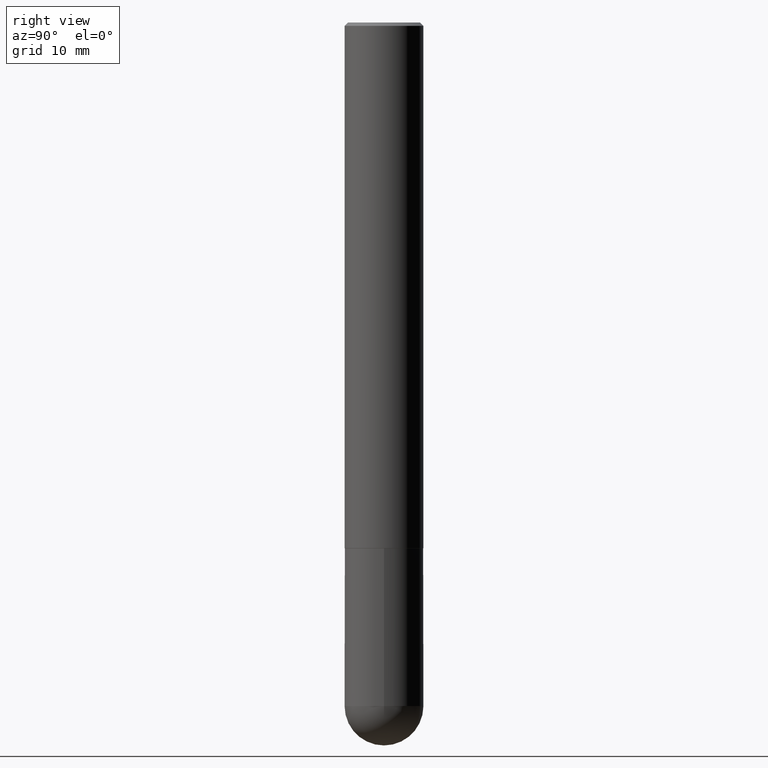
[diagram: clean part render]
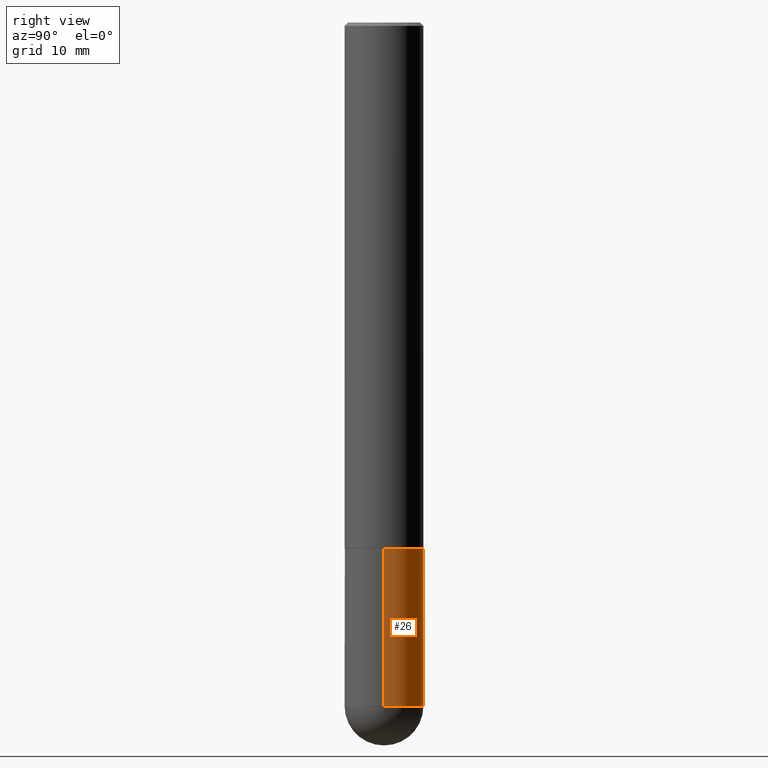
[diagram: same view with one face highlighted and labeled with its STEP entity id]
A machine part, right view. The second image highlights one B-rep face of the part: STEP entity #26.
In plain terms, the highlighted cylindrical surface (partial cylindrical patch) has radius 5.9995 mm, axis along (-0, 0, 1).
Its self-contained STEP definition (entity closure, byte-faithful):
#26 = ADVANCED_FACE ( 'NONE', ( #40 ), #102, .T. ) ;
#28 = DIRECTION ( 'NONE',  ( 1.000000000000000000, -6.982962677686265133E-15, 0.000000000000000000 ) ) ;
#30 = DIRECTION ( 'NONE',  ( 1.000000000000000000, -6.982962677686265133E-15, 0.000000000000000000 ) ) ;
#31 = ORIENTED_EDGE ( 'NONE', *, *, #140, .F. ) ;
#40 = FACE_OUTER_BOUND ( 'NONE', #364, .T. ) ;
#41 = CARTESIAN_POINT ( 'NONE',  ( -0.2361999999999999933, -1.096801804149146130E-14, -3.149600000000000399 ) ) ;
#42 = VECTOR ( 'NONE', #199, 39.37007874015748143 ) ;
#53 = EDGE_CURVE ( 'NONE', #125, #263, #290, .T. ) ;
#73 = AXIS2_PLACEMENT_3D ( 'NONE', #98, #190, #28 ) ;
#92 = ORIENTED_EDGE ( 'NONE', *, *, #53, .F. ) ;
#94 = EDGE_CURVE ( 'NONE', #178, #112, #208, .T. ) ;
#97 = ORIENTED_EDGE ( 'NONE', *, *, #200, .T. ) ;
#98 = CARTESIAN_POINT ( 'NONE',  ( 7.702248551960706711E-29, -1.099676962482037231E-14, -3.149600000000000399 ) ) ;
#102 = CYLINDRICAL_SURFACE ( 'NONE', #168, 0.2361999999999999933 ) ;
#112 = VERTEX_POINT ( 'NONE', #166 ) ;
#118 = DIRECTION ( 'NONE',  ( -2.445468806185136597E-29, 3.491481338843145583E-15, 1.000000000000000000 ) ) ;
#125 = VERTEX_POINT ( 'NONE', #316 ) ;
#140 = EDGE_CURVE ( 'NONE', #263, #360, #250, .T. ) ;
#166 = CARTESIAN_POINT ( 'NONE',  ( -0.2361999999999999933, -1.096801804149146287E-14, -4.094500000000000028 ) ) ;
#168 = AXIS2_PLACEMENT_3D ( 'NONE', #268, #118, #184 ) ;
#175 = CIRCLE ( 'NONE', #388, 0.2361999999999999933 ) ;
#178 = VERTEX_POINT ( 'NONE', #403 ) ;
#184 = DIRECTION ( 'NONE',  ( 1.000000000000000000, -6.982962677686266711E-15, 4.876176775795936353E-29 ) ) ;
#190 = DIRECTION ( 'NONE',  ( -2.445468806185136597E-29, 3.491481338843145583E-15, 1.000000000000000000 ) ) ;
#192 = VECTOR ( 'NONE', #258, 39.37007874015748143 ) ;
#197 = ORIENTED_EDGE ( 'NONE', *, *, #94, .T. ) ;
#199 = DIRECTION ( 'NONE',  ( -2.445468806185136877E-29, 3.491481338843145188E-15, 1.000000000000000000 ) ) ;
#200 = EDGE_CURVE ( 'NONE', #112, #360, #368, .T. ) ;
#208 = CIRCLE ( 'NONE', #402, 0.2361999999999999933 ) ;
#250 = CIRCLE ( 'NONE', #73, 0.2361999999999999933 ) ;
#258 = DIRECTION ( 'NONE',  ( -2.445468806185136877E-29, 3.491481338843145188E-15, 1.000000000000000000 ) ) ;
#263 = VERTEX_POINT ( 'NONE', #349 ) ;
#268 = CARTESIAN_POINT ( 'NONE',  ( 0.000000000000000000, 0.000000000000000000, 0.000000000000000000 ) ) ;
#285 = DIRECTION ( 'NONE',  ( -2.445468806185136597E-29, 3.491481338843145583E-15, 1.000000000000000000 ) ) ;
#287 = CARTESIAN_POINT ( 'NONE',  ( -0.2361999999999999933, 1.678301941865356591E-15, -1.161852468318208757E-29 ) ) ;
#288 = CARTESIAN_POINT ( 'NONE',  ( 1.001297202692504215E-28, -1.429587034189326149E-14, -4.094500000000000028 ) ) ;
#290 = LINE ( 'NONE', #401, #42 ) ;
#316 = CARTESIAN_POINT ( 'NONE',  ( 0.2361999999999999933, -1.429569576782631264E-14, -4.094500000000000028 ) ) ;
#321 = DIRECTION ( 'NONE',  ( -2.445468806185136597E-29, 3.491481338843145583E-15, 1.000000000000000000 ) ) ;
#336 = EDGE_CURVE ( 'NONE', #125, #178, #175, .T. ) ;
#349 = CARTESIAN_POINT ( 'NONE',  ( 0.2361999999999999933, -1.264614540928986883E-14, -3.149600000000000399 ) ) ;
#353 = DIRECTION ( 'NONE',  ( 1.000000000000000000, -6.982962677686265133E-15, 0.000000000000000000 ) ) ;
#360 = VERTEX_POINT ( 'NONE', #41 ) ;
#364 = EDGE_LOOP ( 'NONE', ( #197, #97, #31, #92, #411 ) ) ;
#368 = LINE ( 'NONE', #287, #192 ) ;
#388 = AXIS2_PLACEMENT_3D ( 'NONE', #288, #321, #353 ) ;
#400 = CARTESIAN_POINT ( 'NONE',  ( 1.001297202692504215E-28, -1.429587034189326149E-14, -4.094500000000000028 ) ) ;
#401 = CARTESIAN_POINT ( 'NONE',  ( 0.2361999999999999933, -1.649375784469496131E-15, 1.151752954443000088E-29 ) ) ;
#402 = AXIS2_PLACEMENT_3D ( 'NONE', #400, #285, #30 ) ;
#403 = CARTESIAN_POINT ( 'NONE',  ( 1.649375784469595330E-15, 0.2361999999999855882, -4.094500000000001805 ) ) ;
#411 = ORIENTED_EDGE ( 'NONE', *, *, #336, .T. ) ;